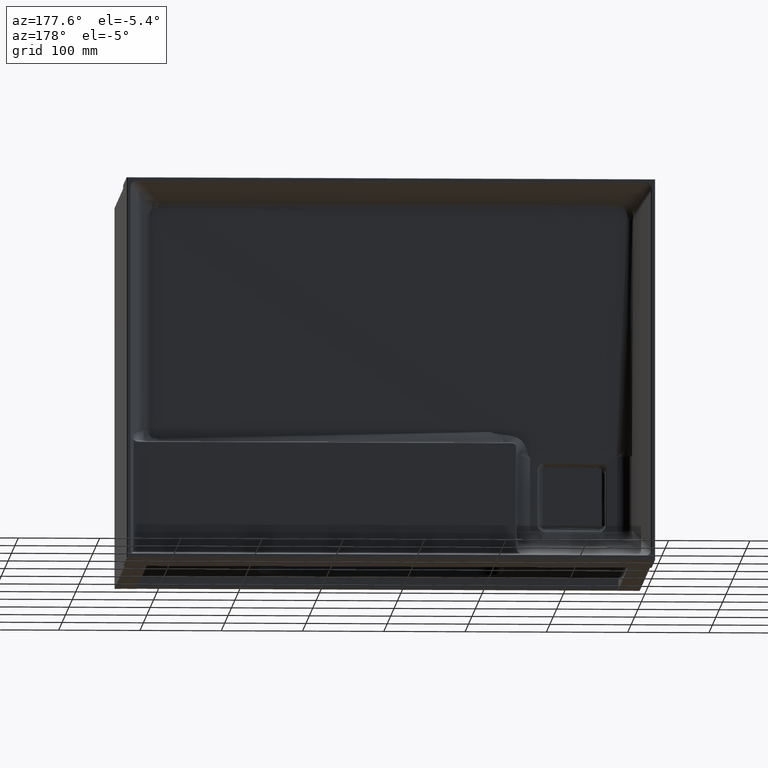
[diagram: clean part render]
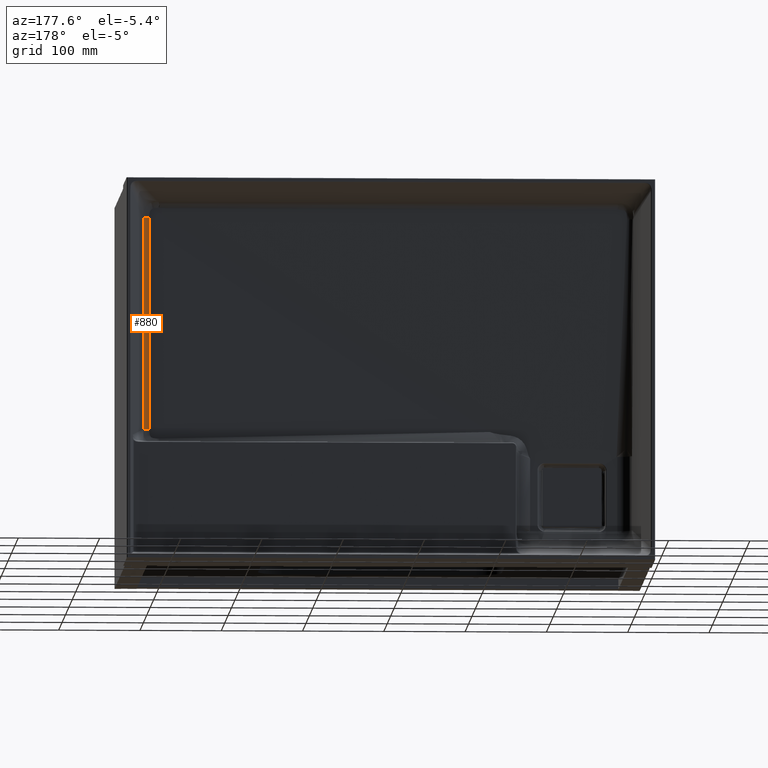
[diagram: same view with one face highlighted and labeled with its STEP entity id]
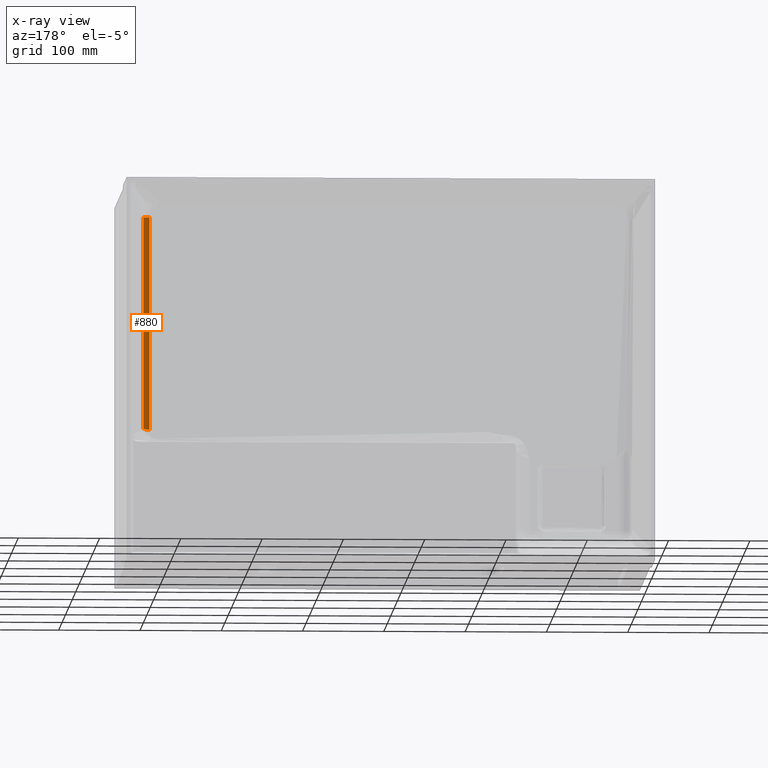
[diagram: x-ray of the same camera — body ghosted, the highlighted face saturated]
A machine part, auxiliary view. The second image highlights one B-rep face of the part: STEP entity #880.
The next image is the same camera in x-ray: the body ghosted, the highlighted face saturated — about 0% of this face is hidden behind the body in this view.
In plain terms, the highlighted cylindrical surface (edge-blend (fillet) strip) has radius 8 mm, axis along (0, 0, 1).
Its self-contained STEP definition (entity closure, byte-faithful):
#80 = CARTESIAN_POINT ( 'NONE',  ( 618.9622796182424054, 329.8162009636461107, -42.70960274678547819 ) ) ;
#125 = CARTESIAN_POINT ( 'NONE',  ( 618.9622796182424054, 329.8162009636461107, -304.5266062759442889 ) ) ;
#154 = CARTESIAN_POINT ( 'NONE',  ( 624.9329591605770702, 332.7072817165017682, -304.5266062755434291 ) ) ;
#337 = EDGE_CURVE ( 'NONE', #900, #4229, #2553, .T. ) ;
#420 = DIRECTION ( 'NONE',  ( 2.433701038385324094E-16, 7.528563083090692666E-18, 1.000000000000000000 ) ) ;
#880 = ADVANCED_FACE ( 'NONE', ( #2604 ), #5948, .F. ) ;
#900 = VERTEX_POINT ( 'NONE', #13697 ) ;
#910 = CARTESIAN_POINT ( 'NONE',  ( 626.4423275491128607, 335.7418235430672553, -42.70960274701607062 ) ) ;
#1233 = CARTESIAN_POINT ( 'NONE',  ( 626.4423275492906669, 335.7418235437309590, -304.5266062753667597 ) ) ;
#2332 = CARTESIAN_POINT ( 'NONE',  ( 625.8687217601558359, 334.1314630008452582, -42.70960274678548529 ) ) ;
#2553 = LINE ( 'NONE', #6980, #5886 ) ;
#2604 = FACE_OUTER_BOUND ( 'NONE', #10850, .T. ) ;
#2695 = LINE ( 'NONE', #7123, #4955 ) ;
#3419 = EDGE_CURVE ( 'NONE', #13661, #4040, #2695, .T. ) ;
#3428 = CARTESIAN_POINT ( 'NONE',  ( 623.0146888594514394, 331.0125243014140892, -42.70960274678547819 ) ) ;
#3496 = CARTESIAN_POINT ( 'NONE',  ( 620.6611695210000335, 330.0060898188405645, -304.5266062758442445 ) ) ;
#3524 = B_SPLINE_CURVE_WITH_KNOTS ( 'NONE', 3,
 ( #80, #4516, #8942, #13353, #3428, #7855, #12268, #2332, #6756, #11177 ),
 .UNSPECIFIED., .F., .F.,
 ( 4, 2, 2, 2, 4 ),
 ( 0.0000000000000000000, 0.2500000000000000000, 0.5000000000000000000, 0.7500000000000000000, 1.000000000000000000 ),
 .UNSPECIFIED. ) ;
#4040 = VERTEX_POINT ( 'NONE', #125 ) ;
#4229 = VERTEX_POINT ( 'NONE', #910 ) ;
#4333 = ORIENTED_EDGE ( 'NONE', *, *, #337, .F. ) ;
#4516 = CARTESIAN_POINT ( 'NONE',  ( 619.8139203432416480, 329.8425461507548562, -42.70960274678548529 ) ) ;
#4591 = CARTESIAN_POINT ( 'NONE',  ( 624.3504378349264243, 332.0706918911469643, -304.5266062755935650 ) ) ;
#4862 = DIRECTION ( 'NONE',  ( 1.000000000000000000, 0.0000000000000000000, -2.168404344971006896E-16 ) ) ;
#4955 = VECTOR ( 'NONE', #11544, 1000.000000000000000 ) ;
#5674 = CARTESIAN_POINT ( 'NONE',  ( 626.2218012692861748, 334.9188082623510923, -304.5266062753931351 ) ) ;
#5886 = VECTOR ( 'NONE', #11392, 1000.000000000000000 ) ;
#5948 = CYLINDRICAL_SURFACE ( 'NONE', #8936, 8.000000000000007105 ) ;
#6111 = B_SPLINE_CURVE_WITH_KNOTS ( 'NONE', 3,
 ( #1233, #5674, #10098, #154, #4591, #9017, #13423, #3496, #7925, #12339 ),
 .UNSPECIFIED., .F., .F.,
 ( 4, 2, 2, 2, 4 ),
 ( 0.0000000000000000000, 0.2500000000000000000, 0.5000000000000000000, 0.7500000000000000000, 1.000000000000000000 ),
 .UNSPECIFIED. ) ;
#6756 = CARTESIAN_POINT ( 'NONE',  ( 626.2218012692864022, 334.9188082623510354, -42.70960274678547819 ) ) ;
#6980 = CARTESIAN_POINT ( 'NONE',  ( 626.4423275492607672, 335.7418235436196596, -5.000000000000004441 ) ) ;
#7123 = CARTESIAN_POINT ( 'NONE',  ( 618.9622796182422917, 329.8162009636461107, -936.5763667275651869 ) ) ;
#7855 = CARTESIAN_POINT ( 'NONE',  ( 624.3504378349265380, 332.0706918911470211, -42.70960274678547819 ) ) ;
#7925 = CARTESIAN_POINT ( 'NONE',  ( 619.8139203432416480, 329.8425461507547425, -304.5266062758942667 ) ) ;
#8936 = AXIS2_PLACEMENT_3D ( 'NONE', #10375, #420, #4862 ) ;
#8942 = CARTESIAN_POINT ( 'NONE',  ( 620.6611695210001471, 330.0060898188405645, -42.70960274678547108 ) ) ;
#9017 = CARTESIAN_POINT ( 'NONE',  ( 623.0146888594513257, 331.0125243014140324, -304.5266062756937799 ) ) ;
#10098 = CARTESIAN_POINT ( 'NONE',  ( 625.8687217601559496, 334.1314630008453150, -304.5266062754432141 ) ) ;
#10375 = CARTESIAN_POINT ( 'NONE',  ( 618.7149209389482394, 337.8123759044398753, -5.000000000000004441 ) ) ;
#10850 = EDGE_LOOP ( 'NONE', ( #12763, #11100, #12326, #4333 ) ) ;
#11100 = ORIENTED_EDGE ( 'NONE', *, *, #3419, .F. ) ;
#11177 = CARTESIAN_POINT ( 'NONE',  ( 626.4423275491128607, 335.7418235430672553, -42.70960274701607062 ) ) ;
#11392 = DIRECTION ( 'NONE',  ( 2.433701038385323601E-16, 7.528563083090712696E-18, 1.000000000000000000 ) ) ;
#11544 = DIRECTION ( 'NONE',  ( -2.433701038385324094E-16, -7.528563083090692666E-18, -1.000000000000000000 ) ) ;
#12268 = CARTESIAN_POINT ( 'NONE',  ( 624.9329591605774112, 332.7072817165019387, -42.70960274678547819 ) ) ;
#12326 = ORIENTED_EDGE ( 'NONE', *, *, #12571, .T. ) ;
#12339 = CARTESIAN_POINT ( 'NONE',  ( 618.9622796182424054, 329.8162009636461107, -304.5266062759442889 ) ) ;
#12571 = EDGE_CURVE ( 'NONE', #13661, #4229, #3524, .T. ) ;
#12589 = EDGE_CURVE ( 'NONE', #900, #4040, #6111, .T. ) ;
#12763 = ORIENTED_EDGE ( 'NONE', *, *, #12589, .T. ) ;
#13012 = CARTESIAN_POINT ( 'NONE',  ( 618.9622796182424054, 329.8162009636461107, -42.70960274678547819 ) ) ;
#13353 = CARTESIAN_POINT ( 'NONE',  ( 622.2616921198621185, 330.5911294619205023, -42.70960274678547108 ) ) ;
#13423 = CARTESIAN_POINT ( 'NONE',  ( 622.2616921198621185, 330.5911294619205592, -304.5266062757439158 ) ) ;
#13661 = VERTEX_POINT ( 'NONE', #13012 ) ;
#13697 = CARTESIAN_POINT ( 'NONE',  ( 626.4423275492906669, 335.7418235437309590, -304.5266062753667597 ) ) ;